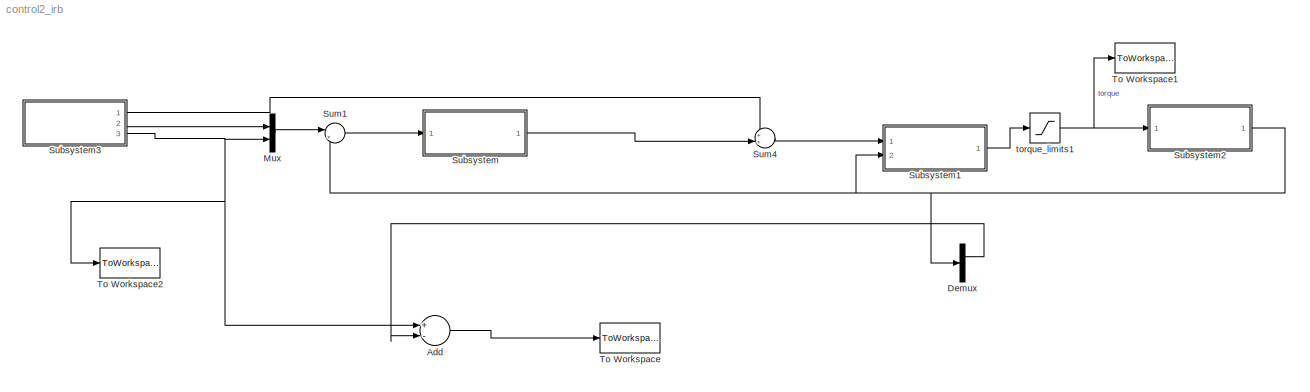
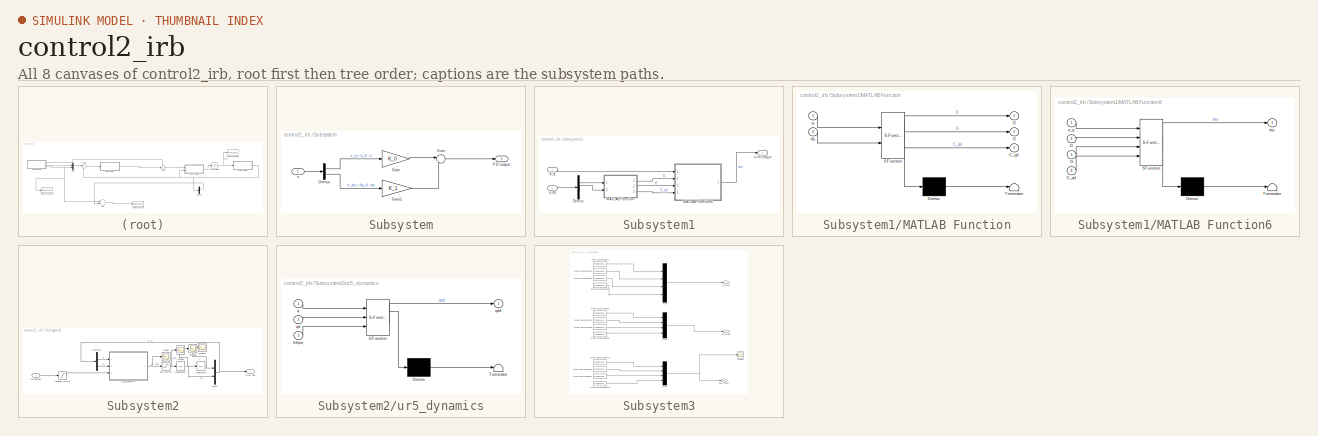
[diagram: thumbnail index - all 8 canvases of the model, root first then tree order]
MODEL control2_irb
KIND model
BLOCK [Sum] Add
  InputSameDT = off
  Inputs = +-
  OutDataTypeStr = Inherit: Inherit via internal rule
  Ports = [2, 1]
  SID = 55
  SaturateOnIntegerOverflow = off
BLOCK [Demux] Demux
  DisplayOption = bar
  Outputs = 2
  Ports = [1, 2]
  SID = 54
BLOCK [Mux] Mux
  DisplayOption = bar
  Inputs = 2
  Ports = [2, 1]
  SID = 22
BLOCK [SubSystem] Subsystem
  Ports = [1, 1]
  RequestExecContextInheritance = off
  SID = 24
BLOCK [Demux] Subsystem/Demux
  DisplayOption = bar
  Outputs = [4 4]
  Ports = [1, 2]
  SID = 26
BLOCK [Gain] Subsystem/Gain
  Gain = K_0
  Multiplication = Matrix(K*u) (u vector)
  OutDataTypeStr = Inherit: Inherit via internal rule
  ParamDataTypeStr = Inherit: Inherit via internal rule
  SID = 27
  SaturateOnIntegerOverflow = off
BLOCK [Gain] Subsystem/Gain1
  Gain = K_1
  Multiplication = Matrix(K*u) (u vector)
  OutDataTypeStr = Inherit: Inherit via internal rule
  ParamDataTypeStr = Inherit: Inherit via internal rule
  SID = 28
  SaturateOnIntegerOverflow = off
BLOCK [Outport] Subsystem/PD output
  IconDisplay = Port number
  SID = 30
BLOCK [Sum] Subsystem/Sum
  IconShape = round
  InputSameDT = off
  Inputs = |++
  OutDataTypeStr = Inherit: Inherit via internal rule
  Ports = [2, 1]
  SID = 29
  SaturateOnIntegerOverflow = off
BLOCK [Inport] Subsystem/e
  IconDisplay = Port number
  SID = 25
BLOCK [SubSystem] Subsystem1
  Ports = [2, 1]
  RequestExecContextInheritance = off
  SID = 33
BLOCK [Demux] Subsystem1/Demux
  DisplayOption = bar
  Outputs = [4 4]
  Ports = [1, 2]
  SID = 36
BLOCK [SubSystem] Subsystem1/MATLAB Function
  ErrorFcn = Stateflow.Translate.translate
  PermitHierarchicalResolution = ExplicitOnly
  Ports = [2, 3]
  RequestExecContextInheritance = off
  SFBlockType = MATLAB Function
  SID = 37
  TreatAsAtomicUnit = on
BLOCK [Demux] Subsystem1/MATLAB Function/ Demux 
  Outputs = 1
  Ports = [1, 1]
  SID = 37::20
BLOCK [S-Function] Subsystem1/MATLAB Function/ SFunction 
  EnableBusSupport = on
  FunctionName = sf_sfun
  PortCounts = [2 4]
  Ports = [2, 4]
  SFcnIsStateOwnerBlock = off
  SFunctionDeploymentMode = off
  SID = 37::19
  Tag = Stateflow S-Function control2_irb 2
BLOCK [Terminator] Subsystem1/MATLAB Function/ Terminator 
  SID = 37::21
BLOCK [Outport] Subsystem1/MATLAB Function/C_qd
  IconDisplay = Port number
  Port = 3
  SID = 37::24
BLOCK [Outport] Subsystem1/MATLAB Function/D
  IconDisplay = Port number
  SID = 37::5
BLOCK [Outport] Subsystem1/MATLAB Function/G
  IconDisplay = Port number
  Port = 2
  SID = 37::23
BLOCK [Inport] Subsystem1/MATLAB Function/dq
  IconDisplay = Port number
  Port = 2
  SID = 37::22
BLOCK [Inport] Subsystem1/MATLAB Function/q
  IconDisplay = Port number
  SID = 37::1
BLOCK [SubSystem] Subsystem1/MATLAB Function6
  ErrorFcn = Stateflow.Translate.translate
  PermitHierarchicalResolution = ExplicitOnly
  Ports = [4, 1]
  RequestExecContextInheritance = off
  SFBlockType = MATLAB Function
  SID = 38
  TreatAsAtomicUnit = on
BLOCK [Demux] Subsystem1/MATLAB Function6/ Demux 
  Outputs = 1
  Ports = [1, 1]
  SID = 38::30
BLOCK [S-Function] Subsystem1/MATLAB Function6/ SFunction 
  EnableBusSupport = on
  FunctionName = sf_sfun
  PortCounts = [4 2]
  Ports = [4, 2]
  SFcnIsStateOwnerBlock = off
  SFunctionDeploymentMode = off
  SID = 38::29
  Tag = Stateflow S-Function control2_irb 30
BLOCK [Terminator] Subsystem1/MATLAB Function6/ Terminator 
  SID = 38::31
BLOCK [Inport] Subsystem1/MATLAB Function6/C_qd
  IconDisplay = Port number
  Port = 4
  SID = 38::21
BLOCK [Inport] Subsystem1/MATLAB Function6/D
  IconDisplay = Port number
  Port = 2
  SID = 38::24
BLOCK [Inport] Subsystem1/MATLAB Function6/G
  IconDisplay = Port number
  Port = 3
  SID = 38::25
BLOCK [Inport] Subsystem1/MATLAB Function6/a_q
  IconDisplay = Port number
  SID = 38::1
BLOCK [Outport] Subsystem1/MATLAB Function6/tau
  IconDisplay = Port number
  SID = 38::23
BLOCK [Inport] Subsystem1/a_q
  IconDisplay = Port number
  SID = 34
BLOCK [Inport] Subsystem1/q,dq
  IconDisplay = Port number
  Port = 2
  SID = 35
BLOCK [Outport] Subsystem1/u=\nTorque
  IconDisplay = Port number
  SID = 39
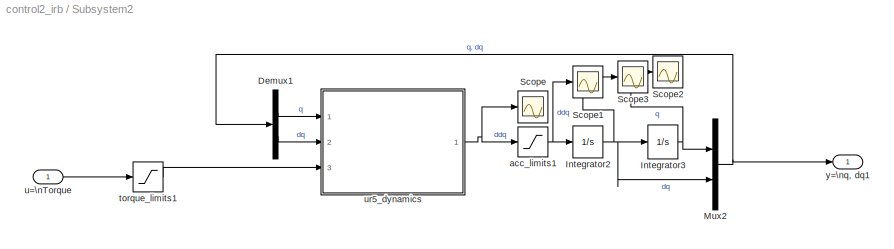
BLOCK [SubSystem] Subsystem2
  Ports = [1, 1]
  RequestExecContextInheritance = off
  SID = 42
BLOCK [Demux] Subsystem2/Demux1
  DisplayOption = bar
  Outputs = [4 4]
  Ports = [1, 2]
  SID = 44
BLOCK [Integrator] Subsystem2/Integrator2
  ContinuousStateAttributes = 'velocity'
  InitialCondition = Q_A
  LimitOutput = on
  LowerSaturationLimit = -[3.4000    3.4000    15    3.4000]
  Ports = [1, 1]
  SID = 45
  UpperSaturationLimit = [3.4000    3.4000    15    3.4000]
BLOCK [Integrator] Subsystem2/Integrator3
  ContinuousStateAttributes = 'position'
  InitialCondition = Q_A
  LimitOutput = on
  LowerSaturationLimit = -[6.2832    6.2832    6.2832    6.2832]
  Ports = [1, 1]
  SID = 46
  UpperSaturationLimit = [6.2832    6.2832    6.2832    6.2832]
BLOCK [Mux] Subsystem2/Mux2
  DisplayOption = bar
  Inputs = [4 4]
  Ports = [2, 1]
  SID = 47
BLOCK [Scope] Subsystem2/Scope
  Floating = off
  NumInputPorts = 1
  Ports = [1]
  SID = 66
  ScopeSpecificationString = Simulink.scopes.TimeScopeBlockCfg('CurrentConfiguration', extmgr.ConfigurationSet(extmgr.Configuration('Core','General UI',true),extmgr.Configuration('Core','Source UI',true),extmgr.Configuration('Sources','WiredSimulink',true,'DataLoggingVariableName','ScopeData6'),extmgr.Configuration('Visuals','Time Domain',true,'SerializedDisplays',{struct('MinYLimReal','-0.91619','MaxYLimReal','7.56282','YLab...<+1415ch>
BLOCK [Scope] Subsystem2/Scope1
  Floating = off
  NumInputPorts = 1
  Ports = [1]
  SID = 67
  ScopeSpecificationString = Simulink.scopes.TimeScopeBlockCfg('CurrentConfiguration', extmgr.ConfigurationSet(extmgr.Configuration('Core','General UI',true),extmgr.Configuration('Core','Source UI',true),extmgr.Configuration('Sources','WiredSimulink',true,'DataLoggingVariableName','ScopeData7'),extmgr.Configuration('Visuals','Time Domain',true,'SerializedDisplays',{struct('MinYLimReal','-0.91619','MaxYLimReal','7.56282','YLab...<+1386ch>
BLOCK [Scope] Subsystem2/Scope2
  Floating = off
  NumInputPorts = 1
  Ports = [1]
  SID = 68
  ScopeSpecificationString = Simulink.scopes.TimeScopeBlockCfg('CurrentConfiguration', extmgr.ConfigurationSet(extmgr.Configuration('Core','General UI',true),extmgr.Configuration('Core','Source UI',true),extmgr.Configuration('Sources','WiredSimulink',true,'DataLoggingVariableName','ScopeData8'),extmgr.Configuration('Visuals','Time Domain',true,'SerializedDisplays',{struct('MinYLimReal','-0.48521','MaxYLimReal','4.36685','YLab...<+1380ch>
BLOCK [Scope] Subsystem2/Scope3
  Floating = off
  NumInputPorts = 1
  Ports = [1]
  SID = 69
  ScopeSpecificationString = Simulink.scopes.TimeScopeBlockCfg('CurrentConfiguration', extmgr.ConfigurationSet(extmgr.Configuration('Core','General UI',true),extmgr.Configuration('Core','Source UI',true),extmgr.Configuration('Sources','WiredSimulink',true,'DataLoggingVariableName','ScopeData9'),extmgr.Configuration('Visuals','Time Domain',true,'SerializedDisplays',{struct('MinYLimReal','-0.2044','MaxYLimReal','0.676','YLabelR...<+1374ch>
BLOCK [Saturate] Subsystem2/acc_limits1
  InputPortMap = u0
  LowerLimit = -a_max
  Ports = [1, 1]
  SID = 48
  UpperLimit = a_max
BLOCK [Saturate] Subsystem2/torque_limits1
  InputPortMap = u0
  LowerLimit = -[150   150   150   28]
  Ports = [1, 1]
  SID = 49
  UpperLimit = [150   150   150   28]
BLOCK [Inport] Subsystem2/u=\nTorque
  IconDisplay = Port number
  SID = 43
BLOCK [SubSystem] Subsystem2/ur5_dynamics
  ErrorFcn = Stateflow.Translate.translate
  PermitHierarchicalResolution = ExplicitOnly
  Ports = [3, 1]
  RequestExecContextInheritance = off
  SFBlockType = MATLAB Function
  SID = 50
  TreatAsAtomicUnit = on
BLOCK [Demux] Subsystem2/ur5_dynamics/ Demux 
  Outputs = 1
  Ports = [1, 1]
  SID = 50::167
BLOCK [S-Function] Subsystem2/ur5_dynamics/ SFunction 
  EnableBusSupport = on
  FunctionName = sf_sfun
  PortCounts = [3 2]
  Ports = [3, 2]
  SFcnIsStateOwnerBlock = off
  SFunctionDeploymentMode = off
  SID = 50::166
  Tag = Stateflow S-Function control2_irb 25
BLOCK [Terminator] Subsystem2/ur5_dynamics/ Terminator 
  SID = 50::168
BLOCK [Inport] Subsystem2/ur5_dynamics/q
  IconDisplay = Port number
  SID = 50::26
BLOCK [Inport] Subsystem2/ur5_dynamics/qd
  IconDisplay = Port number
  Port = 2
  SID = 50::27
BLOCK [Outport] Subsystem2/ur5_dynamics/qdd
  IconDisplay = Port number
  SID = 50::30
BLOCK [Inport] Subsystem2/ur5_dynamics/torque
  IconDisplay = Port number
  Port = 3
  SID = 50::29
BLOCK [Outport] Subsystem2/y=\nq, dq1
  IconDisplay = Port number
  SID = 51
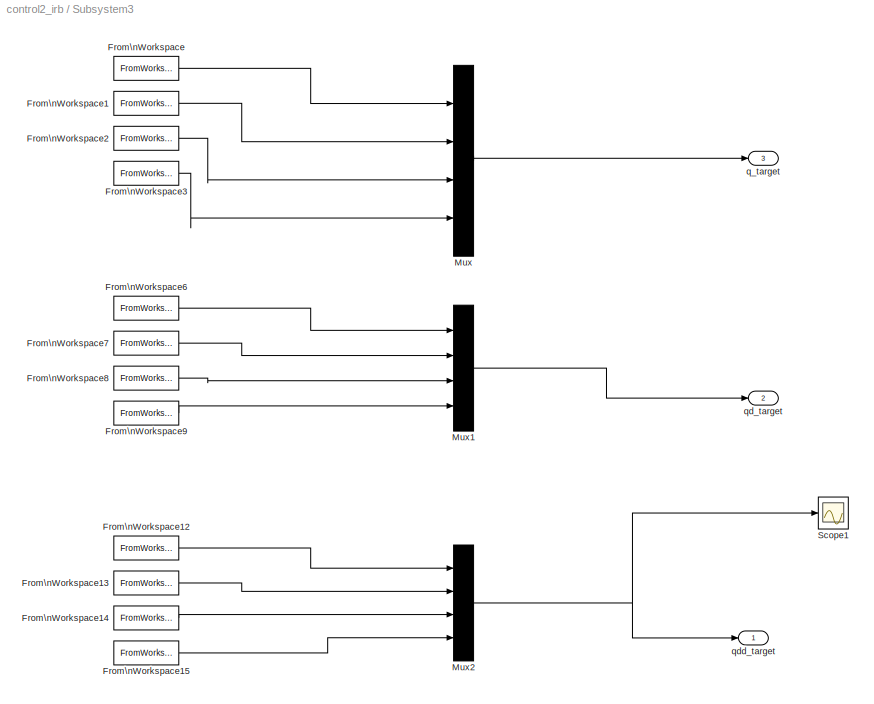
BLOCK [SubSystem] Subsystem3
  Ports = [0, 3]
  RequestExecContextInheritance = off
  SID = 1
BLOCK [FromWorkspace] Subsystem3/From\nWorkspace
  SID = 2
  SampleTime = 0
  VariableName = signal1
  ZeroCross = on
BLOCK [FromWorkspace] Subsystem3/From\nWorkspace1
  SID = 3
  SampleTime = 0
  VariableName = signal2
  ZeroCross = on
BLOCK [FromWorkspace] Subsystem3/From\nWorkspace12
  SID = 4
  SampleTime = 0
  VariableName = signal1_a
  ZeroCross = on
BLOCK [FromWorkspace] Subsystem3/From\nWorkspace13
  SID = 5
  SampleTime = 0
  VariableName = signal2_a
  ZeroCross = on
BLOCK [FromWorkspace] Subsystem3/From\nWorkspace14
  SID = 6
  SampleTime = 0
  VariableName = signal3_a
  ZeroCross = on
BLOCK [FromWorkspace] Subsystem3/From\nWorkspace15
  SID = 7
  SampleTime = 0
  VariableName = signal4_a
  ZeroCross = on
BLOCK [FromWorkspace] Subsystem3/From\nWorkspace2
  SID = 8
  SampleTime = 0
  VariableName = signal3
  ZeroCross = on
BLOCK [FromWorkspace] Subsystem3/From\nWorkspace3
  SID = 9
  SampleTime = 0
  VariableName = signal4
  ZeroCross = on
BLOCK [FromWorkspace] Subsystem3/From\nWorkspace6
  SID = 10
  SampleTime = 0
  VariableName = signal1_v
  ZeroCross = on
BLOCK [FromWorkspace] Subsystem3/From\nWorkspace7
  SID = 11
  SampleTime = 0
  VariableName = signal2_v
  ZeroCross = on
BLOCK [FromWorkspace] Subsystem3/From\nWorkspace8
  SID = 12
  SampleTime = 0
  VariableName = signal3_v
  ZeroCross = on
BLOCK [FromWorkspace] Subsystem3/From\nWorkspace9
  SID = 13
  SampleTime = 0
  VariableName = signal4_v
  ZeroCross = on
BLOCK [Mux] Subsystem3/Mux
  DisplayOption = bar
  Ports = [4, 1]
  SID = 14
BLOCK [Mux] Subsystem3/Mux1
  DisplayOption = bar
  Ports = [4, 1]
  SID = 15
BLOCK [Mux] Subsystem3/Mux2
  DisplayOption = bar
  Ports = [4, 1]
  SID = 16
BLOCK [Scope] Subsystem3/Scope1
  Floating = off
  NumInputPorts = 1
  Ports = [1]
  SID = 17
  ScopeSpecificationString = Simulink.scopes.TimeScopeBlockCfg('CurrentConfiguration', extmgr.ConfigurationSet(extmgr.Configuration('Core','General UI',true),extmgr.Configuration('Core','Source UI',true),extmgr.Configuration('Sources','WiredSimulink',true,'DataLoggingVariableName','ScopeData5'),extmgr.Configuration('Visuals','Time Domain',true,'SerializedDisplays',{struct('MinYLimReal','-0.13184','MaxYLimReal','0.26185','YLab...<+1470ch>
BLOCK [Outport] Subsystem3/q_target
  IconDisplay = Port number
  Port = 3
  SID = 20
BLOCK [Outport] Subsystem3/qd_target
  IconDisplay = Port number
  Port = 2
  SID = 19
BLOCK [Outport] Subsystem3/qdd_target
  IconDisplay = Port number
  SID = 18
BLOCK [Sum] Sum1
  IconShape = round
  InputSameDT = off
  Inputs = |+-
  OutDataTypeStr = Inherit: Inherit via internal rule
  Ports = [2, 1]
  SID = 23
  SaturateOnIntegerOverflow = off
BLOCK [Sum] Sum4
  IconShape = round
  InputSameDT = off
  Inputs = ++|
  OutDataTypeStr = Inherit: Inherit via internal rule
  Ports = [2, 1]
  SID = 32
  SaturateOnIntegerOverflow = off
BLOCK [ToWorkspace] To Workspace
  FixptAsFi = on
  MaxDataPoints = inf
  Ports = [1]
  SID = 71
  SampleTime = -1
  SaveFormat = Timeseries
  VariableName = erroPos
BLOCK [ToWorkspace] To Workspace1
  FixptAsFi = on
  MaxDataPoints = inf
  Ports = [1]
  SID = 73
  SampleTime = -1
  SaveFormat = Timeseries
  VariableName = torques
BLOCK [ToWorkspace] To Workspace2
  FixptAsFi = on
  MaxDataPoints = inf
  Ports = [1]
  SID = 74
  SampleTime = -1
  SaveFormat = Timeseries
  VariableName = posicaoReal
BLOCK [Saturate] torque_limits1
  InputPortMap = u0
  LowerLimit = -torque_max
  Ports = [1, 1]
  SID = 41
  UpperLimit = torque_max
LINE Add:1 -> To Workspace:1
LINE Demux:1 -> Add:2
LINE Mux:1 -> Sum1:1
LINE Subsystem/Demux:1 -> Subsystem/Gain:1
LINE Subsystem/Demux:2 -> Subsystem/Gain1:1
LINE Subsystem/Gain1:1 -> Subsystem/Sum:2
LINE Subsystem/Gain:1 -> Subsystem/Sum:1
LINE Subsystem/Sum:1 -> Subsystem/PD output:1
LINE Subsystem/e:1 -> Subsystem/Demux:1
LINE Subsystem1/Demux:1 -> Subsystem1/MATLAB Function:1
LINE Subsystem1/Demux:2 -> Subsystem1/MATLAB Function:2
LINE Subsystem1/MATLAB Function/ Demux :1 -> Subsystem1/MATLAB Function/ Terminator :1
LINE Subsystem1/MATLAB Function/ SFunction :1 -> Subsystem1/MATLAB Function/ Demux :1
LINE Subsystem1/MATLAB Function/ SFunction :2 -> Subsystem1/MATLAB Function/D:1
LINE Subsystem1/MATLAB Function/ SFunction :3 -> Subsystem1/MATLAB Function/G:1
LINE Subsystem1/MATLAB Function/ SFunction :4 -> Subsystem1/MATLAB Function/C_qd:1
LINE Subsystem1/MATLAB Function/dq:1 -> Subsystem1/MATLAB Function/ SFunction :2
LINE Subsystem1/MATLAB Function/q:1 -> Subsystem1/MATLAB Function/ SFunction :1
LINE Subsystem1/MATLAB Function6/ Demux :1 -> Subsystem1/MATLAB Function6/ Terminator :1
LINE Subsystem1/MATLAB Function6/ SFunction :1 -> Subsystem1/MATLAB Function6/ Demux :1
LINE Subsystem1/MATLAB Function6/ SFunction :2 -> Subsystem1/MATLAB Function6/tau:1
LINE Subsystem1/MATLAB Function6/C_qd:1 -> Subsystem1/MATLAB Function6/ SFunction :4
LINE Subsystem1/MATLAB Function6/D:1 -> Subsystem1/MATLAB Function6/ SFunction :2
LINE Subsystem1/MATLAB Function6/G:1 -> Subsystem1/MATLAB Function6/ SFunction :3
LINE Subsystem1/MATLAB Function6/a_q:1 -> Subsystem1/MATLAB Function6/ SFunction :1
LINE Subsystem1/MATLAB Function6:1 -> Subsystem1/u=\nTorque:1
LINE Subsystem1/MATLAB Function:1 -> Subsystem1/MATLAB Function6:2
LINE Subsystem1/MATLAB Function:2 -> Subsystem1/MATLAB Function6:3
LINE Subsystem1/MATLAB Function:3 -> Subsystem1/MATLAB Function6:4
LINE Subsystem1/a_q:1 -> Subsystem1/MATLAB Function6:1
LINE Subsystem1/q,dq:1 -> Subsystem1/Demux:1
LINE Subsystem1:1 -> torque_limits1:1
LINE Subsystem2/Demux1:1 -> Subsystem2/ur5_dynamics:1
LINE Subsystem2/Demux1:2 -> Subsystem2/ur5_dynamics:2
NET Subsystem2/Integrator2:1 -> Subsystem2/Integrator3:1, Subsystem2/Mux2:2, Subsystem2/Scope3:1
NET Subsystem2/Integrator3:1 -> Subsystem2/Mux2:1, Subsystem2/Scope2:1
NET Subsystem2/Mux2:1 -> Subsystem2/Demux1:1, Subsystem2/y=\nq, dq1:1
NET Subsystem2/acc_limits1:1 -> Subsystem2/Integrator2:1, Subsystem2/Scope1:1
LINE Subsystem2/torque_limits1:1 -> Subsystem2/ur5_dynamics:3
LINE Subsystem2/u=\nTorque:1 -> Subsystem2/torque_limits1:1
LINE Subsystem2/ur5_dynamics/ Demux :1 -> Subsystem2/ur5_dynamics/ Terminator :1
LINE Subsystem2/ur5_dynamics/ SFunction :1 -> Subsystem2/ur5_dynamics/ Demux :1
LINE Subsystem2/ur5_dynamics/ SFunction :2 -> Subsystem2/ur5_dynamics/qdd:1
LINE Subsystem2/ur5_dynamics/q:1 -> Subsystem2/ur5_dynamics/ SFunction :1
LINE Subsystem2/ur5_dynamics/qd:1 -> Subsystem2/ur5_dynamics/ SFunction :2
LINE Subsystem2/ur5_dynamics/torque:1 -> Subsystem2/ur5_dynamics/ SFunction :3
NET Subsystem2/ur5_dynamics:1 -> Subsystem2/Scope:1, Subsystem2/acc_limits1:1
NET Subsystem2:1 -> Demux:1, Subsystem1:2, Sum1:2
LINE Subsystem3/From\nWorkspace12:1 -> Subsystem3/Mux2:1
LINE Subsystem3/From\nWorkspace13:1 -> Subsystem3/Mux2:2
LINE Subsystem3/From\nWorkspace14:1 -> Subsystem3/Mux2:3
LINE Subsystem3/From\nWorkspace15:1 -> Subsystem3/Mux2:4
LINE Subsystem3/From\nWorkspace1:1 -> Subsystem3/Mux:2
LINE Subsystem3/From\nWorkspace2:1 -> Subsystem3/Mux:3
LINE Subsystem3/From\nWorkspace3:1 -> Subsystem3/Mux:4
LINE Subsystem3/From\nWorkspace6:1 -> Subsystem3/Mux1:1
LINE Subsystem3/From\nWorkspace7:1 -> Subsystem3/Mux1:2
LINE Subsystem3/From\nWorkspace8:1 -> Subsystem3/Mux1:3
LINE Subsystem3/From\nWorkspace9:1 -> Subsystem3/Mux1:4
LINE Subsystem3/From\nWorkspace:1 -> Subsystem3/Mux:1
LINE Subsystem3/Mux1:1 -> Subsystem3/qd_target:1
NET Subsystem3/Mux2:1 -> Subsystem3/Scope1:1, Subsystem3/qdd_target:1
LINE Subsystem3/Mux:1 -> Subsystem3/q_target:1
LINE Subsystem3:1 -> Sum4:1
LINE Subsystem3:2 -> Mux:1
NET Subsystem3:3 -> Add:1, Mux:2, To Workspace2:1
LINE Subsystem:1 -> Sum4:2
LINE Sum1:1 -> Subsystem:1
LINE Sum4:1 -> Subsystem1:1
NET torque_limits1:1 -> Subsystem2:1, To Workspace1:1
note: NET lines group one-source signal fan-out (src -> all destinations, sorted); 1:1 wires keep LINE
CHART Subsystem1/MATLAB Function states=1 transitions=1
  STATE_LABEL 'eML_blk_kernel()'
CHART Subsystem2/ur5_dynamics states=1 transitions=1
  STATE_LABEL 'eML_blk_kernel()'
CHART Subsystem1/MATLAB Function6 states=1 transitions=1
  STATE_LABEL 'eML_blk_kernel()'
